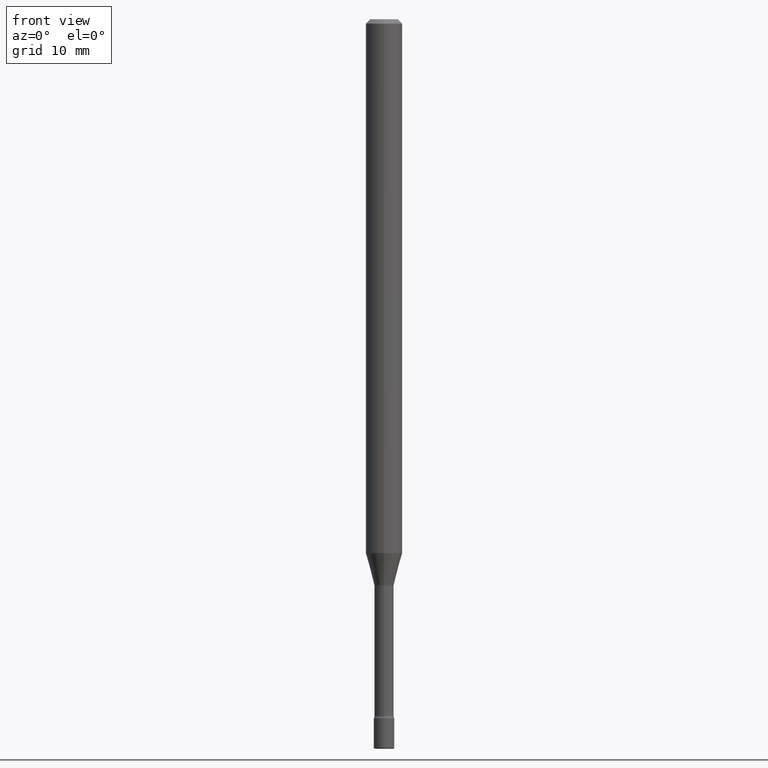
[diagram: clean part render]
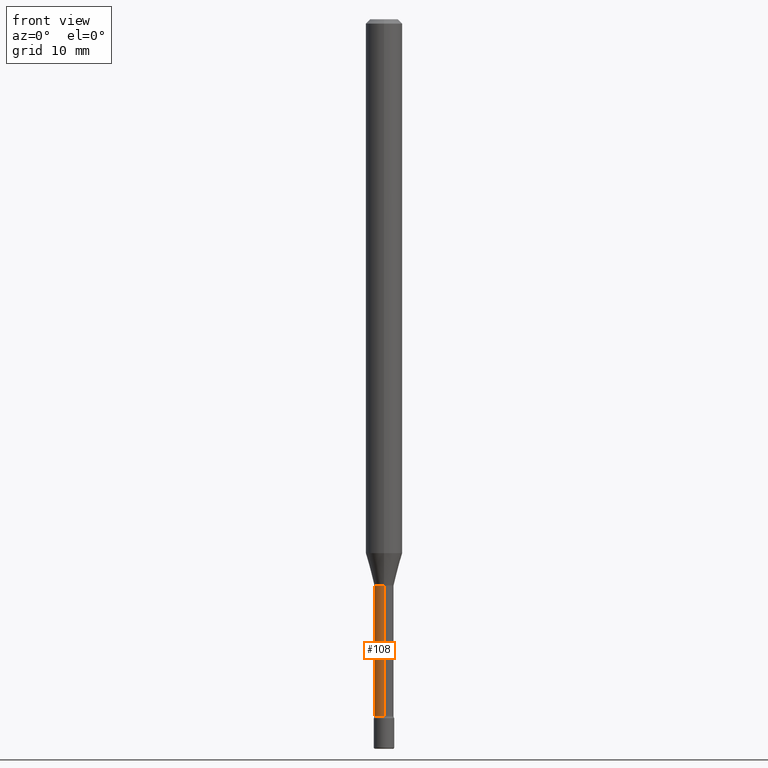
[diagram: same view with one face highlighted and labeled with its STEP entity id]
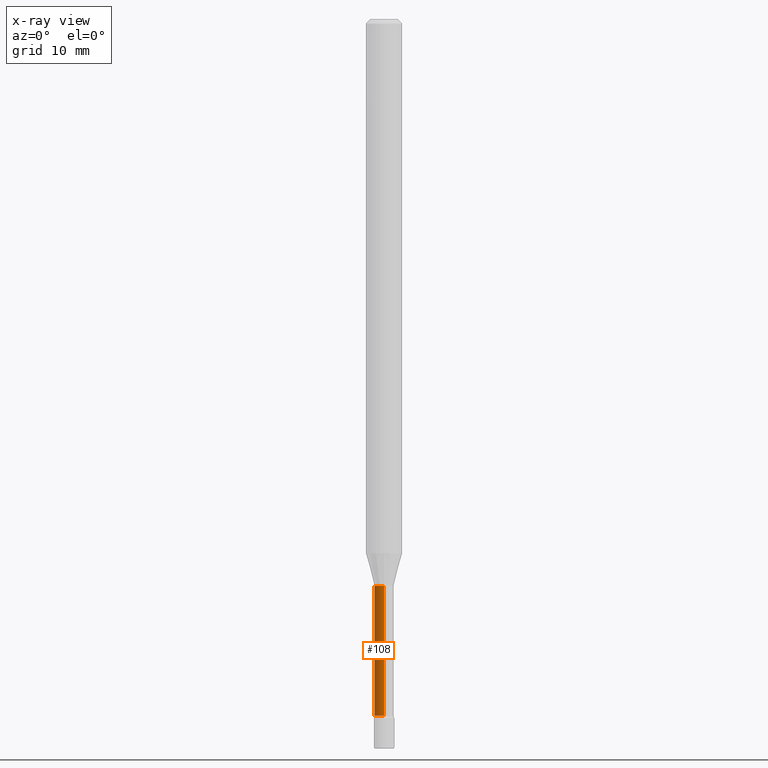
[diagram: x-ray of the same camera — body ghosted, the highlighted face saturated]
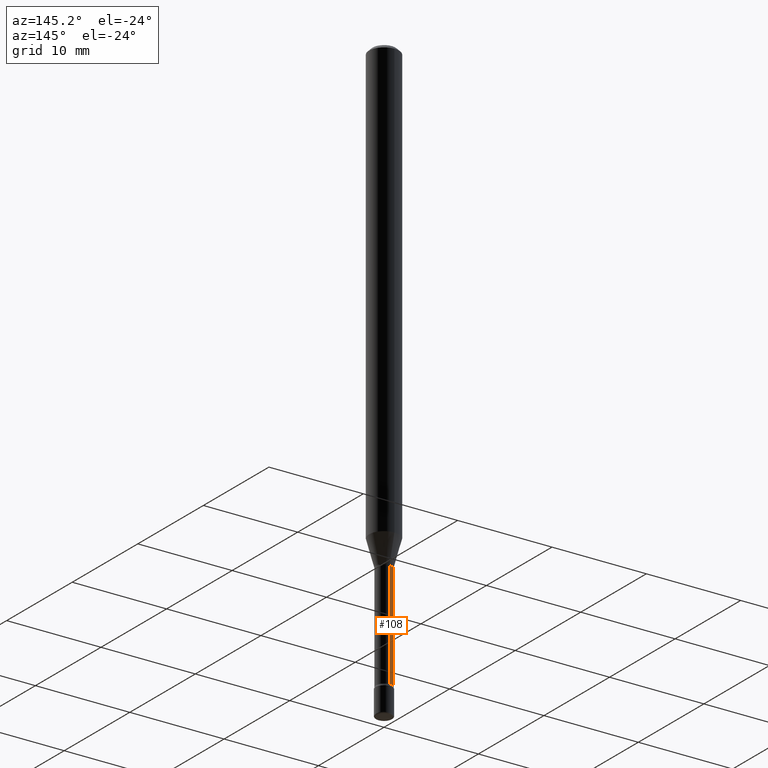
[diagram: same view with one face highlighted and labeled with its STEP entity id]
A machine part, front view. The second image highlights one B-rep face of the part: STEP entity #108.
The next image is the same camera in x-ray: the body ghosted, the highlighted face saturated — about 0% of this face is hidden behind the body in this view.
A second angle (auxiliary view) of the same face is appended — the face is thin or edge-on in the first view.
In plain terms, the highlighted cylindrical surface (edge-blend (fillet) strip) has radius 0.8357 mm, axis along (-0, 0, 1).
Its self-contained STEP definition (entity closure, byte-faithful):
#10 = DIRECTION ( 'NONE',  ( -2.445361929537154917E-29, 3.491634392286096321E-15, 1.000000000000000000 ) ) ;
#11 = VECTOR ( 'NONE', #10, 39.37007874015748143 ) ;
#25 = ORIENTED_EDGE ( 'NONE', *, *, #354, .F. ) ;
#37 = CYLINDRICAL_SURFACE ( 'NONE', #392, 0.03290000000000004726 ) ;
#43 = DIRECTION ( 'NONE',  ( -6.982962677686265133E-15, -1.000000000000000000, 3.491634392286094348E-15 ) ) ;
#58 = CARTESIAN_POINT ( 'NONE',  ( 4.748831213385011578E-29, -6.780665956861124561E-15, -1.941974787463811136 ) ) ;
#97 = DIRECTION ( 'NONE',  ( -6.982962677686265133E-15, -1.000000000000000000, 0.000000000000000000 ) ) ;
#108 = ADVANCED_FACE ( 'NONE', ( #172 ), #37, .T. ) ;
#109 = VERTEX_POINT ( 'NONE', #478 ) ;
#112 = VERTEX_POINT ( 'NONE', #140 ) ;
#115 = ORIENTED_EDGE ( 'NONE', *, *, #435, .F. ) ;
#134 = AXIS2_PLACEMENT_3D ( 'NONE', #274, #362, #222 ) ;
#140 = CARTESIAN_POINT ( 'NONE',  ( 2.337685600651315248E-16, 0.03289999999999321245, -1.941974787463811136 ) ) ;
#172 = FACE_OUTER_BOUND ( 'NONE', #411, .T. ) ;
#200 = CARTESIAN_POINT ( 'NONE',  ( 2.337685600650732477E-16, 0.03290000000000004726, 3.631986273850333500E-16 ) ) ;
#212 = CIRCLE ( 'NONE', #458, 0.03289999999999999869 ) ;
#215 = DIRECTION ( 'NONE',  ( -2.445361929537154917E-29, 3.491634392286096321E-15, 1.000000000000000000 ) ) ;
#222 = DIRECTION ( 'NONE',  ( -6.982962677686266711E-15, -1.000000000000000000, 0.000000000000000000 ) ) ;
#237 = ORIENTED_EDGE ( 'NONE', *, *, #297, .T. ) ;
#271 = EDGE_CURVE ( 'NONE', #272, #503, #341, .T. ) ;
#272 = VERTEX_POINT ( 'NONE', #441 ) ;
#274 = CARTESIAN_POINT ( 'NONE',  ( 5.837924017228111976E-29, -8.335737966594106856E-15, -2.387345589506696619 ) ) ;
#285 = VECTOR ( 'NONE', #366, 39.37007874015748143 ) ;
#297 = EDGE_CURVE ( 'NONE', #503, #109, #535, .T. ) ;
#341 = CIRCLE ( 'NONE', #134, 0.03290000000000008890 ) ;
#354 = EDGE_CURVE ( 'NONE', #112, #109, #212, .T. ) ;
#362 = DIRECTION ( 'NONE',  ( -2.445361929537154917E-29, 3.491634392286096321E-15, 1.000000000000000000 ) ) ;
#366 = DIRECTION ( 'NONE',  ( -2.445361929537154917E-29, 3.491634392286096321E-15, 1.000000000000000000 ) ) ;
#369 = CARTESIAN_POINT ( 'NONE',  ( -2.297394720958204179E-16, -0.03290000000000842945, -2.387345589506696619 ) ) ;
#392 = AXIS2_PLACEMENT_3D ( 'NONE', #475, #215, #43 ) ;
#411 = EDGE_LOOP ( 'NONE', ( #115, #554, #237, #25 ) ) ;
#435 = EDGE_CURVE ( 'NONE', #272, #112, #465, .T. ) ;
#441 = CARTESIAN_POINT ( 'NONE',  ( 2.412292587906125932E-16, 0.03289999999999175528, -2.387345589506696619 ) ) ;
#458 = AXIS2_PLACEMENT_3D ( 'NONE', #58, #491, #97 ) ;
#465 = LINE ( 'NONE', #200, #285 ) ;
#475 = CARTESIAN_POINT ( 'NONE',  ( -1.169113584055446105E-44, 1.669184350826100908E-30, 4.780733988912460139E-16 ) ) ;
#478 = CARTESIAN_POINT ( 'NONE',  ( -2.297394720958306238E-16, -0.03290000000000677799, -1.941974787463811136 ) ) ;
#491 = DIRECTION ( 'NONE',  ( -2.445361929537154917E-29, 3.491634392286096321E-15, 1.000000000000000000 ) ) ;
#503 = VERTEX_POINT ( 'NONE', #369 ) ;
#535 = LINE ( 'NONE', #537, #11 ) ;
#537 = CARTESIAN_POINT ( 'NONE',  ( -2.297394720958784485E-16, -0.03290000000000004726, 5.929481703974587272E-16 ) ) ;
#554 = ORIENTED_EDGE ( 'NONE', *, *, #271, .T. ) ;